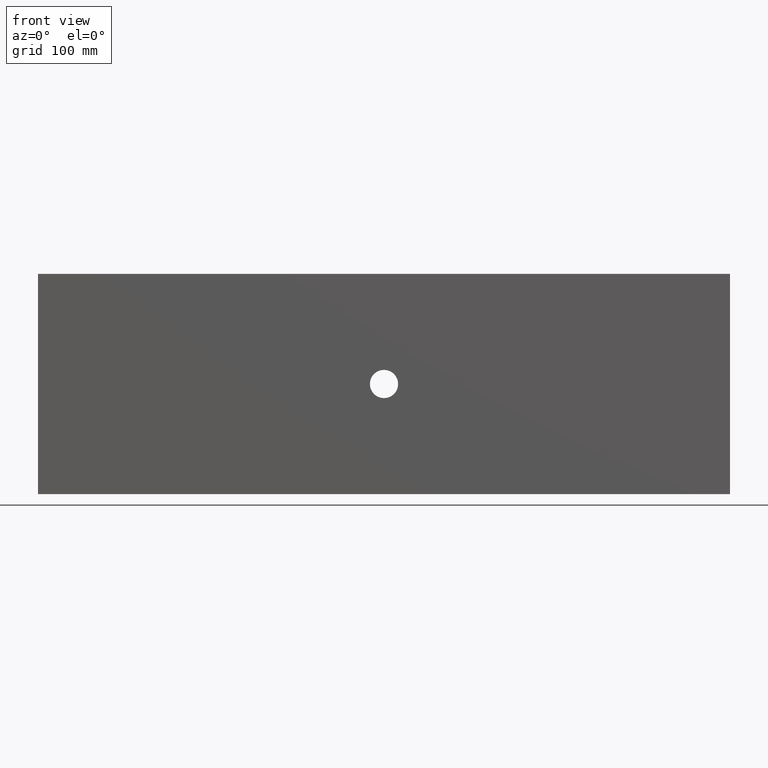
[diagram: clean part render]
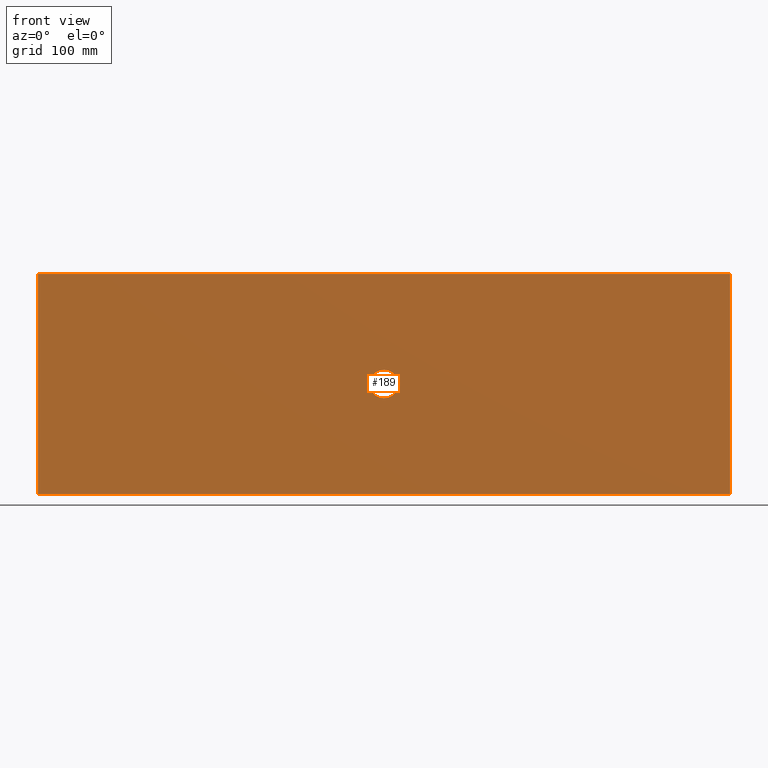
[diagram: same view with one face highlighted and labeled with its STEP entity id]
A machine part, front view. The second image highlights one B-rep face of the part: STEP entity #189.
In plain terms, the highlighted planar face has unit normal (0, -1, 0).
Its self-contained STEP definition (entity closure, byte-faithful):
#14 = EDGE_LOOP ( 'NONE', ( #1123, #468, #884, #112 ) ) ;
#34 = VECTOR ( 'NONE', #194, 1000.000000000000000 ) ;
#106 = AXIS2_PLACEMENT_3D ( 'NONE', #353, #1155, #492 ) ;
#112 = ORIENTED_EDGE ( 'NONE', *, *, #250, .F. ) ;
#140 = DIRECTION ( 'NONE',  ( 0.0000000000000000000, 0.0000000000000000000, -1.000000000000000000 ) ) ;
#147 = DIRECTION ( 'NONE',  ( -0.0000000000000000000, 1.000000000000000000, -0.0000000000000000000 ) ) ;
#148 = EDGE_CURVE ( 'NONE', #238, #847, #332, .T. ) ;
#150 = CARTESIAN_POINT ( 'NONE',  ( 0.0000000000000000000, 0.0000000000000000000, -350.0000000000000000 ) ) ;
#151 = VECTOR ( 'NONE', #908, 1000.000000000000000 ) ;
#168 = LINE ( 'NONE', #545, #151 ) ;
#189 = ADVANCED_FACE ( 'NONE', ( #520, #1069 ), #800, .T. ) ;
#194 = DIRECTION ( 'NONE',  ( -1.000000000000000000, -0.0000000000000000000, -0.0000000000000000000 ) ) ;
#238 = VERTEX_POINT ( 'NONE', #788 ) ;
#240 = DIRECTION ( 'NONE',  ( 0.0000000000000000000, -1.000000000000000000, 0.0000000000000000000 ) ) ;
#250 = EDGE_CURVE ( 'NONE', #661, #840, #627, .T. ) ;
#268 = EDGE_CURVE ( 'NONE', #414, #293, #920, .T. ) ;
#280 = DIRECTION ( 'NONE',  ( 0.0000000000000000000, -0.0000000000000000000, -1.000000000000000000 ) ) ;
#293 = VERTEX_POINT ( 'NONE', #607 ) ;
#300 = CARTESIAN_POINT ( 'NONE',  ( 0.0000000000000000000, 0.0000000000000000000, 0.0000000000000000000 ) ) ;
#332 = CIRCLE ( 'NONE', #106, 22.50000000000010300 ) ;
#344 = CARTESIAN_POINT ( 'NONE',  ( 1100.000000000000000, 0.0000000000000000000, 0.0000000000000000000 ) ) ;
#353 = CARTESIAN_POINT ( 'NONE',  ( 550.0000000000000000, 0.0000000000000000000, -175.0000000000000300 ) ) ;
#414 = VERTEX_POINT ( 'NONE', #1036 ) ;
#468 = ORIENTED_EDGE ( 'NONE', *, *, #268, .F. ) ;
#489 = CARTESIAN_POINT ( 'NONE',  ( 0.0000000000000000000, 0.0000000000000000000, -350.0000000000000000 ) ) ;
#492 = DIRECTION ( 'NONE',  ( 0.0000000000000000000, 0.0000000000000000000, -1.000000000000000000 ) ) ;
#520 = FACE_BOUND ( 'NONE', #927, .T. ) ;
#545 = CARTESIAN_POINT ( 'NONE',  ( 1100.000000000000000, 0.0000000000000000000, 0.0000000000000000000 ) ) ;
#573 = CARTESIAN_POINT ( 'NONE',  ( 550.0000000000000000, 0.0000000000000000000, -175.0000000000000300 ) ) ;
#607 = CARTESIAN_POINT ( 'NONE',  ( 0.0000000000000000000, 0.0000000000000000000, -350.0000000000000000 ) ) ;
#627 = LINE ( 'NONE', #912, #817 ) ;
#639 = CARTESIAN_POINT ( 'NONE',  ( 0.0000000000000000000, 0.0000000000000000000, 0.0000000000000000000 ) ) ;
#661 = VERTEX_POINT ( 'NONE', #300 ) ;
#697 = DIRECTION ( 'NONE',  ( -0.0000000000000000000, -0.0000000000000000000, 1.000000000000000000 ) ) ;
#780 = LINE ( 'NONE', #639, #807 ) ;
#788 = CARTESIAN_POINT ( 'NONE',  ( 550.0000000000000000, 0.0000000000000000000, -197.5000000000001100 ) ) ;
#800 = PLANE ( 'NONE',  #1090 ) ;
#807 = VECTOR ( 'NONE', #697, 1000.000000000000000 ) ;
#817 = VECTOR ( 'NONE', #940, 1000.000000000000000 ) ;
#840 = VERTEX_POINT ( 'NONE', #344 ) ;
#847 = VERTEX_POINT ( 'NONE', #918 ) ;
#884 = ORIENTED_EDGE ( 'NONE', *, *, #956, .F. ) ;
#908 = DIRECTION ( 'NONE',  ( 0.0000000000000000000, 0.0000000000000000000, -1.000000000000000000 ) ) ;
#910 = EDGE_CURVE ( 'NONE', #847, #238, #1135, .T. ) ;
#912 = CARTESIAN_POINT ( 'NONE',  ( 0.0000000000000000000, 0.0000000000000000000, 0.0000000000000000000 ) ) ;
#918 = CARTESIAN_POINT ( 'NONE',  ( 550.0000000000000000, 0.0000000000000000000, -152.4999999999999100 ) ) ;
#920 = LINE ( 'NONE', #150, #34 ) ;
#927 = EDGE_LOOP ( 'NONE', ( #970, #984 ) ) ;
#940 = DIRECTION ( 'NONE',  ( 1.000000000000000000, 0.0000000000000000000, 0.0000000000000000000 ) ) ;
#956 = EDGE_CURVE ( 'NONE', #840, #414, #168, .T. ) ;
#970 = ORIENTED_EDGE ( 'NONE', *, *, #910, .T. ) ;
#984 = ORIENTED_EDGE ( 'NONE', *, *, #148, .T. ) ;
#1000 = EDGE_CURVE ( 'NONE', #293, #661, #780, .T. ) ;
#1036 = CARTESIAN_POINT ( 'NONE',  ( 1100.000000000000000, 0.0000000000000000000, -350.0000000000000000 ) ) ;
#1069 = FACE_OUTER_BOUND ( 'NONE', #14, .T. ) ;
#1072 = AXIS2_PLACEMENT_3D ( 'NONE', #573, #147, #140 ) ;
#1090 = AXIS2_PLACEMENT_3D ( 'NONE', #489, #240, #280 ) ;
#1123 = ORIENTED_EDGE ( 'NONE', *, *, #1000, .F. ) ;
#1135 = CIRCLE ( 'NONE', #1072, 22.50000000000010300 ) ;
#1155 = DIRECTION ( 'NONE',  ( -0.0000000000000000000, 1.000000000000000000, -0.0000000000000000000 ) ) ;